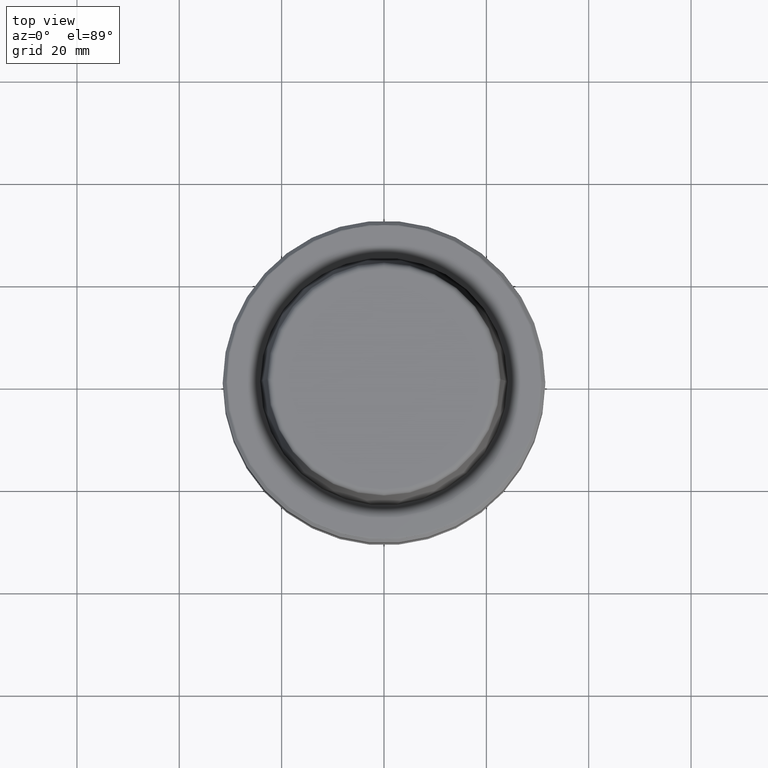
[diagram: clean part render]
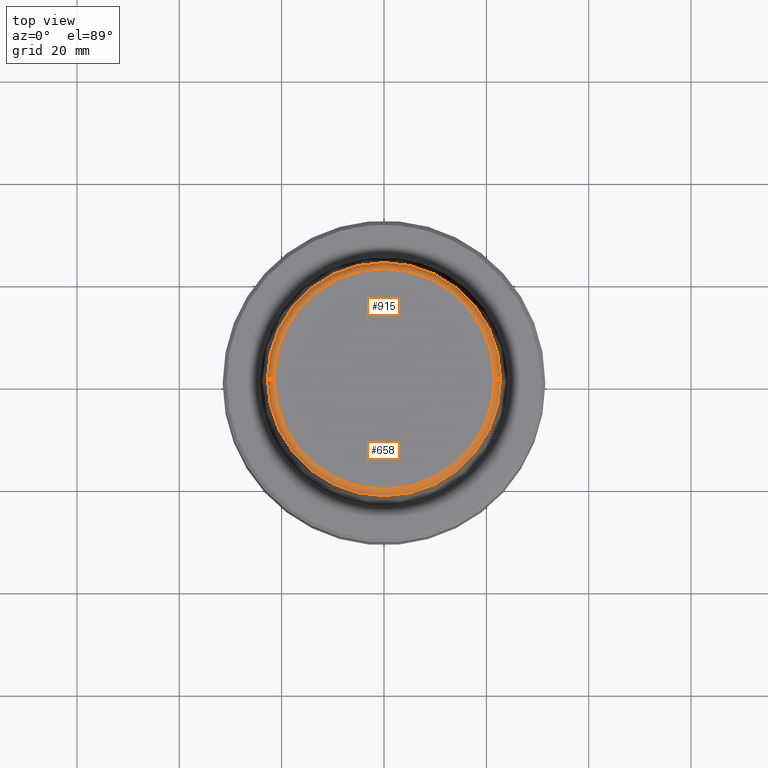
[diagram: same view with one multi-face feature highlighted, each face labeled with its STEP entity id]
A machine part, top view. The highlighted faces form ONE feature: a constant-radius fillet chain: 2 tangent blend faces with common blend radius 1.2 mm. The faces share edges in the B-rep.
Their STEP definitions:
[1] entity #658 (Torus):
#85 = VERTEX_POINT ( 'NONE', #918 ) ;
#127 = DIRECTION ( 'NONE',  ( 1.224646799147353200E-016, 1.000000000000000000, 0.0000000000000000000 ) ) ;
#173 = CARTESIAN_POINT ( 'NONE',  ( 21.58108272732117100, 0.0000000000000000000, 30.69999999999999200 ) ) ;
#188 = ORIENTED_EDGE ( 'NONE', *, *, #490, .T. ) ;
#196 = CIRCLE ( 'NONE', #1058, 21.58108272732117100 ) ;
#200 = DIRECTION ( 'NONE',  ( 0.0000000000000000000, -1.000000000000000000, 0.0000000000000000000 ) ) ;
#214 = DIRECTION ( 'NONE',  ( -1.000000000000000000, 1.224646799147353200E-016, 0.0000000000000000000 ) ) ;
#223 = DIRECTION ( 'NONE',  ( -0.0000000000000000000, -0.0000000000000000000, 1.000000000000000000 ) ) ;
#243 = AXIS2_PLACEMENT_3D ( 'NONE', #625, #223, #942 ) ;
#270 = CARTESIAN_POINT ( 'NONE',  ( -21.58108272732117100, 2.642920388414810300E-015, 30.69999999999999200 ) ) ;
#283 = TOROIDAL_SURFACE ( 'NONE', #985, 21.58108272732117100, 1.200000000000003100 ) ;
#322 = CARTESIAN_POINT ( 'NONE',  ( 0.0000000000000000000, 0.0000000000000000000, 31.89999999999999900 ) ) ;
#339 = EDGE_CURVE ( 'NONE', #439, #909, #1205, .T. ) ;
#398 = CIRCLE ( 'NONE', #907, 1.200000000000003100 ) ;
#425 = EDGE_CURVE ( 'NONE', #1063, #85, #398, .T. ) ;
#439 = VERTEX_POINT ( 'NONE', #543 ) ;
#471 = ORIENTED_EDGE ( 'NONE', *, *, #339, .T. ) ;
#479 = CARTESIAN_POINT ( 'NONE',  ( 0.0000000000000000000, 0.0000000000000000000, 30.69999999999999200 ) ) ;
#487 = DIRECTION ( 'NONE',  ( 1.000000000000000000, 0.0000000000000000000, 0.0000000000000000000 ) ) ;
#490 = EDGE_CURVE ( 'NONE', #1063, #439, #1088, .T. ) ;
#543 = CARTESIAN_POINT ( 'NONE',  ( 22.77957961851797100, 2.874852597157249900E-015, 30.76004333261571900 ) ) ;
#553 = EDGE_CURVE ( 'NONE', #85, #909, #196, .T. ) ;
#571 = AXIS2_PLACEMENT_3D ( 'NONE', #173, #200, #738 ) ;
#625 = CARTESIAN_POINT ( 'NONE',  ( 0.0000000000000000000, 0.0000000000000000000, 30.76004333261571900 ) ) ;
#638 = ORIENTED_EDGE ( 'NONE', *, *, #553, .F. ) ;
#658 = ADVANCED_FACE ( 'NONE', ( #688 ), #283, .T. ) ;
#688 = FACE_OUTER_BOUND ( 'NONE', #1144, .T. ) ;
#701 = CARTESIAN_POINT ( 'NONE',  ( 21.58108272732117100, 0.0000000000000000000, 31.89999999999999900 ) ) ;
#738 = DIRECTION ( 'NONE',  ( 0.0000000000000000000, 0.0000000000000000000, -1.000000000000000000 ) ) ;
#907 = AXIS2_PLACEMENT_3D ( 'NONE', #270, #127, #214 ) ;
#909 = VERTEX_POINT ( 'NONE', #701 ) ;
#918 = CARTESIAN_POINT ( 'NONE',  ( -21.58108272732117100, 2.716307157494421400E-015, 31.89999999999999900 ) ) ;
#942 = DIRECTION ( 'NONE',  ( 1.000000000000000000, 0.0000000000000000000, 0.0000000000000000000 ) ) ;
#968 = ORIENTED_EDGE ( 'NONE', *, *, #425, .F. ) ;
#970 = DIRECTION ( 'NONE',  ( 1.000000000000000000, 0.0000000000000000000, 0.0000000000000000000 ) ) ;
#985 = AXIS2_PLACEMENT_3D ( 'NONE', #479, #1054, #487 ) ;
#1054 = DIRECTION ( 'NONE',  ( -0.0000000000000000000, -0.0000000000000000000, 1.000000000000000000 ) ) ;
#1058 = AXIS2_PLACEMENT_3D ( 'NONE', #322, #1107, #970 ) ;
#1063 = VERTEX_POINT ( 'NONE', #1064 ) ;
#1064 = CARTESIAN_POINT ( 'NONE',  ( -22.77957961851797100, 0.0000000000000000000, 30.76004333261571900 ) ) ;
#1088 = CIRCLE ( 'NONE', #243, 22.77957961851797100 ) ;
#1107 = DIRECTION ( 'NONE',  ( -0.0000000000000000000, -0.0000000000000000000, 1.000000000000000000 ) ) ;
#1144 = EDGE_LOOP ( 'NONE', ( #968, #188, #471, #638 ) ) ;
#1205 = CIRCLE ( 'NONE', #571, 1.200000000000003100 ) ;
[2] entity #915 (Torus):
#7 = CIRCLE ( 'NONE', #695, 21.58108272732117100 ) ;
#38 = EDGE_LOOP ( 'NONE', ( #833, #119, #1173, #892 ) ) ;
#85 = VERTEX_POINT ( 'NONE', #918 ) ;
#100 = TOROIDAL_SURFACE ( 'NONE', #1215, 21.58108272732117100, 1.200000000000003100 ) ;
#119 = ORIENTED_EDGE ( 'NONE', *, *, #425, .T. ) ;
#127 = DIRECTION ( 'NONE',  ( 1.224646799147353200E-016, 1.000000000000000000, 0.0000000000000000000 ) ) ;
#133 = EDGE_CURVE ( 'NONE', #439, #1063, #686, .T. ) ;
#146 = DIRECTION ( 'NONE',  ( -0.0000000000000000000, -0.0000000000000000000, 1.000000000000000000 ) ) ;
#173 = CARTESIAN_POINT ( 'NONE',  ( 21.58108272732117100, 0.0000000000000000000, 30.69999999999999200 ) ) ;
#200 = DIRECTION ( 'NONE',  ( 0.0000000000000000000, -1.000000000000000000, 0.0000000000000000000 ) ) ;
#214 = DIRECTION ( 'NONE',  ( -1.000000000000000000, 1.224646799147353200E-016, 0.0000000000000000000 ) ) ;
#268 = FACE_OUTER_BOUND ( 'NONE', #38, .T. ) ;
#270 = CARTESIAN_POINT ( 'NONE',  ( -21.58108272732117100, 2.642920388414810300E-015, 30.69999999999999200 ) ) ;
#339 = EDGE_CURVE ( 'NONE', #439, #909, #1205, .T. ) ;
#390 = DIRECTION ( 'NONE',  ( 1.000000000000000000, 0.0000000000000000000, 0.0000000000000000000 ) ) ;
#398 = CIRCLE ( 'NONE', #907, 1.200000000000003100 ) ;
#425 = EDGE_CURVE ( 'NONE', #1063, #85, #398, .T. ) ;
#439 = VERTEX_POINT ( 'NONE', #543 ) ;
#543 = CARTESIAN_POINT ( 'NONE',  ( 22.77957961851797100, 2.874852597157249900E-015, 30.76004333261571900 ) ) ;
#552 = DIRECTION ( 'NONE',  ( -0.0000000000000000000, -0.0000000000000000000, 1.000000000000000000 ) ) ;
#557 = CARTESIAN_POINT ( 'NONE',  ( 0.0000000000000000000, 0.0000000000000000000, 31.89999999999999900 ) ) ;
#571 = AXIS2_PLACEMENT_3D ( 'NONE', #173, #200, #738 ) ;
#659 = DIRECTION ( 'NONE',  ( 1.000000000000000000, 0.0000000000000000000, 0.0000000000000000000 ) ) ;
#662 = DIRECTION ( 'NONE',  ( -0.0000000000000000000, -0.0000000000000000000, 1.000000000000000000 ) ) ;
#686 = CIRCLE ( 'NONE', #774, 22.77957961851797100 ) ;
#695 = AXIS2_PLACEMENT_3D ( 'NONE', #557, #662, #659 ) ;
#701 = CARTESIAN_POINT ( 'NONE',  ( 21.58108272732117100, 0.0000000000000000000, 31.89999999999999900 ) ) ;
#738 = DIRECTION ( 'NONE',  ( 0.0000000000000000000, 0.0000000000000000000, -1.000000000000000000 ) ) ;
#753 = CARTESIAN_POINT ( 'NONE',  ( 0.0000000000000000000, 0.0000000000000000000, 30.76004333261571900 ) ) ;
#774 = AXIS2_PLACEMENT_3D ( 'NONE', #753, #552, #806 ) ;
#806 = DIRECTION ( 'NONE',  ( 1.000000000000000000, 0.0000000000000000000, 0.0000000000000000000 ) ) ;
#833 = ORIENTED_EDGE ( 'NONE', *, *, #133, .T. ) ;
#892 = ORIENTED_EDGE ( 'NONE', *, *, #339, .F. ) ;
#907 = AXIS2_PLACEMENT_3D ( 'NONE', #270, #127, #214 ) ;
#909 = VERTEX_POINT ( 'NONE', #701 ) ;
#915 = ADVANCED_FACE ( 'NONE', ( #268 ), #100, .T. ) ;
#918 = CARTESIAN_POINT ( 'NONE',  ( -21.58108272732117100, 2.716307157494421400E-015, 31.89999999999999900 ) ) ;
#1063 = VERTEX_POINT ( 'NONE', #1064 ) ;
#1064 = CARTESIAN_POINT ( 'NONE',  ( -22.77957961851797100, 0.0000000000000000000, 30.76004333261571900 ) ) ;
#1135 = EDGE_CURVE ( 'NONE', #909, #85, #7, .T. ) ;
#1173 = ORIENTED_EDGE ( 'NONE', *, *, #1135, .F. ) ;
#1205 = CIRCLE ( 'NONE', #571, 1.200000000000003100 ) ;
#1209 = CARTESIAN_POINT ( 'NONE',  ( 0.0000000000000000000, 0.0000000000000000000, 30.69999999999999200 ) ) ;
#1215 = AXIS2_PLACEMENT_3D ( 'NONE', #1209, #146, #390 ) ;